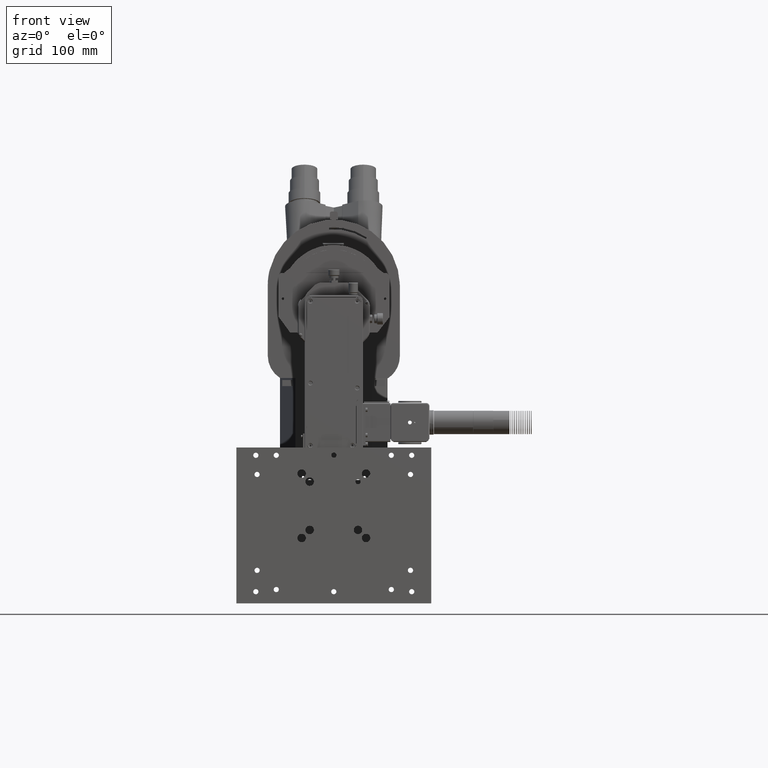
[diagram: clean part render]
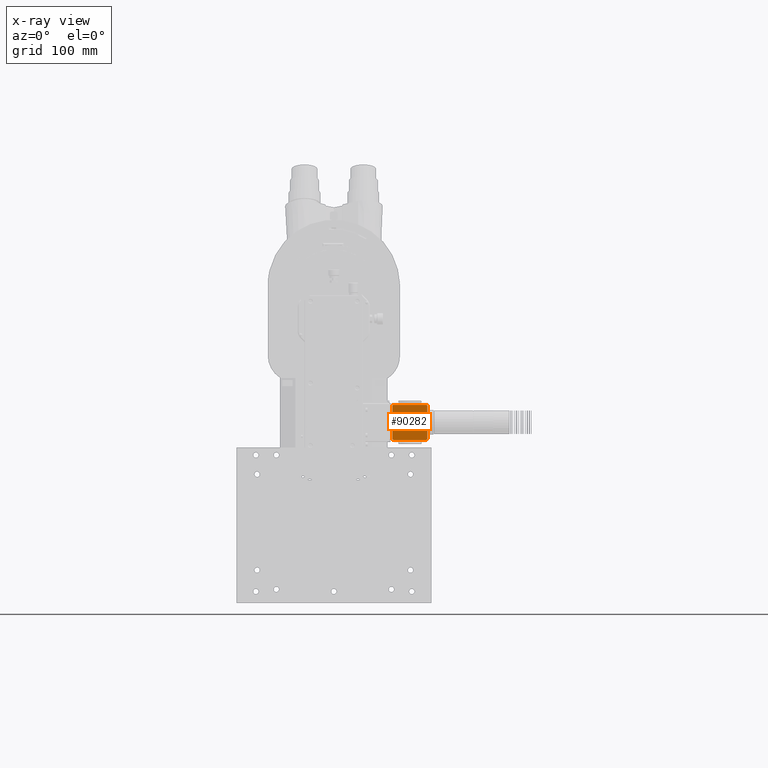
[diagram: x-ray — body ghosted, one internal face saturated and labeled with its STEP entity id]
A machine part, front view, then the same camera in x-ray: the body is ghosted and one INTERNAL B-rep face — a face not visible from any outside direction — is saturated and labeled: STEP entity #90282.
In plain terms, the highlighted planar face has unit normal (0, -1, 0).
Its self-contained STEP definition (entity closure, byte-faithful):
#203 = CIRCLE ( 'NONE', #92633, 1.778000000000001800 ) ;
#922 = CARTESIAN_POINT ( 'NONE',  ( 104.5590147013431200, -322.4024415146998900, 357.6370352799296500 ) ) ;
#3776 = CARTESIAN_POINT ( 'NONE',  ( 104.5590147013431200, -322.4024415146998900, 311.9170352799296200 ) ) ;
#5659 = DIRECTION ( 'NONE',  ( -0.0000000000000000000, 1.000000000000000000, -0.0000000000000000000 ) ) ;
#7919 = ORIENTED_EDGE ( 'NONE', *, *, #35339, .T. ) ;
#9604 = CARTESIAN_POINT ( 'NONE',  ( 148.5010147013431100, -322.4024415146998900, 309.8850352799296400 ) ) ;
#16562 = DIRECTION ( 'NONE',  ( 0.0000000000000000000, -1.000000000000000000, 0.0000000000000000000 ) ) ;
#23456 = LINE ( 'NONE', #84037, #113750 ) ;
#27086 = EDGE_CURVE ( 'NONE', #128031, #136220, #73305, .T. ) ;
#27867 = PLANE ( 'NONE',  #74154 ) ;
#30159 = CARTESIAN_POINT ( 'NONE',  ( 146.7230147013431200, -322.4024415146998900, 311.9170352799296200 ) ) ;
#32650 = VECTOR ( 'NONE', #53203, 1000.000000000000000 ) ;
#34160 = ORIENTED_EDGE ( 'NONE', *, *, #39385, .T. ) ;
#35339 = EDGE_CURVE ( 'NONE', #148197, #71816, #45445, .T. ) ;
#36388 = EDGE_LOOP ( 'NONE', ( #7919, #86473, #137566, #147007, #34160, #57947, #140884, #103364 ) ) ;
#38971 = CARTESIAN_POINT ( 'NONE',  ( 146.7230147013431200, -322.4024415146998900, 313.6950352799296400 ) ) ;
#39385 = EDGE_CURVE ( 'NONE', #49257, #128031, #138864, .T. ) ;
#41677 = EDGE_CURVE ( 'NONE', #126103, #148197, #203, .T. ) ;
#42672 = VECTOR ( 'NONE', #55731, 1000.000000000000000 ) ;
#45445 = LINE ( 'NONE', #101012, #32650 ) ;
#45520 = EDGE_CURVE ( 'NONE', #71816, #67027, #68679, .T. ) ;
#46365 = LINE ( 'NONE', #78915, #42672 ) ;
#47517 = EDGE_CURVE ( 'NONE', #53896, #49257, #98490, .T. ) ;
#49257 = VERTEX_POINT ( 'NONE', #100685 ) ;
#50845 = DIRECTION ( 'NONE',  ( 0.0000000000000000000, 0.0000000000000000000, -1.000000000000000000 ) ) ;
#53003 = DIRECTION ( 'NONE',  ( -0.0000000000000000000, 1.000000000000000000, -0.0000000000000000000 ) ) ;
#53203 = DIRECTION ( 'NONE',  ( 0.0000000000000000000, 0.0000000000000000000, 1.000000000000000000 ) ) ;
#53896 = VERTEX_POINT ( 'NONE', #133818 ) ;
#55012 = EDGE_CURVE ( 'NONE', #136220, #126103, #23456, .T. ) ;
#55731 = DIRECTION ( 'NONE',  ( 1.000000000000000000, 0.0000000000000000000, 0.0000000000000000000 ) ) ;
#57223 = EDGE_CURVE ( 'NONE', #67027, #53896, #46365, .T. ) ;
#57947 = ORIENTED_EDGE ( 'NONE', *, *, #27086, .T. ) ;
#61415 = DIRECTION ( 'NONE',  ( -1.000000000000000000, 0.0000000000000000000, 0.0000000000000000000 ) ) ;
#67027 = VERTEX_POINT ( 'NONE', #922 ) ;
#68356 = CARTESIAN_POINT ( 'NONE',  ( 104.5590147013431200, -322.4024415146998900, 313.6950352799296400 ) ) ;
#68679 = CIRCLE ( 'NONE', #141446, 1.778000000000001800 ) ;
#71816 = VERTEX_POINT ( 'NONE', #146741 ) ;
#73305 = CIRCLE ( 'NONE', #93671, 1.778000000000001800 ) ;
#74154 = AXIS2_PLACEMENT_3D ( 'NONE', #86960, #16562, #98788 ) ;
#74609 = CARTESIAN_POINT ( 'NONE',  ( 148.5010147013431100, -322.4024415146998900, 313.6950352799296400 ) ) ;
#76034 = CARTESIAN_POINT ( 'NONE',  ( 146.7230147013431200, -322.4024415146998900, 355.8590352799296300 ) ) ;
#78915 = CARTESIAN_POINT ( 'NONE',  ( 150.5330147013431200, -322.4024415146998900, 357.6370352799296500 ) ) ;
#80218 = DIRECTION ( 'NONE',  ( 0.0000000000000000000, 0.0000000000000000000, -1.000000000000000000 ) ) ;
#80514 = DIRECTION ( 'NONE',  ( 0.0000000000000000000, 0.0000000000000000000, -1.000000000000000000 ) ) ;
#84037 = CARTESIAN_POINT ( 'NONE',  ( 150.5330147013431200, -322.4024415146998900, 311.9170352799296200 ) ) ;
#86473 = ORIENTED_EDGE ( 'NONE', *, *, #45520, .T. ) ;
#86960 = CARTESIAN_POINT ( 'NONE',  ( 150.5330147013431200, -322.4024415146998900, 309.8850352799296400 ) ) ;
#87794 = DIRECTION ( 'NONE',  ( 0.0000000000000000000, 0.0000000000000000000, -1.000000000000000000 ) ) ;
#90282 = ADVANCED_FACE ( 'NONE', ( #130086 ), #27867, .F. ) ;
#92633 = AXIS2_PLACEMENT_3D ( 'NONE', #68356, #150885, #80218 ) ;
#93671 = AXIS2_PLACEMENT_3D ( 'NONE', #38971, #121440, #50845 ) ;
#98490 = CIRCLE ( 'NONE', #147791, 1.778000000000001800 ) ;
#98788 = DIRECTION ( 'NONE',  ( 0.0000000000000000000, -0.0000000000000000000, -1.000000000000000000 ) ) ;
#100685 = CARTESIAN_POINT ( 'NONE',  ( 148.5010147013431100, -322.4024415146998900, 355.8590352799296300 ) ) ;
#101012 = CARTESIAN_POINT ( 'NONE',  ( 102.7810147013431100, -322.4024415146998900, 309.8850352799296400 ) ) ;
#103364 = ORIENTED_EDGE ( 'NONE', *, *, #41677, .T. ) ;
#104434 = CARTESIAN_POINT ( 'NONE',  ( 102.7810147013431200, -322.4024415146998900, 313.6950352799296400 ) ) ;
#107513 = VECTOR ( 'NONE', #80514, 1000.000000000000000 ) ;
#113750 = VECTOR ( 'NONE', #61415, 1000.000000000000000 ) ;
#121440 = DIRECTION ( 'NONE',  ( -0.0000000000000000000, 1.000000000000000000, -0.0000000000000000000 ) ) ;
#123623 = CARTESIAN_POINT ( 'NONE',  ( 104.5590147013431200, -322.4024415146998900, 355.8590352799296300 ) ) ;
#126103 = VERTEX_POINT ( 'NONE', #3776 ) ;
#128031 = VERTEX_POINT ( 'NONE', #74609 ) ;
#130086 = FACE_OUTER_BOUND ( 'NONE', #36388, .T. ) ;
#133818 = CARTESIAN_POINT ( 'NONE',  ( 146.7230147013431200, -322.4024415146998900, 357.6370352799296500 ) ) ;
#135344 = DIRECTION ( 'NONE',  ( 0.0000000000000000000, 0.0000000000000000000, -1.000000000000000000 ) ) ;
#136220 = VERTEX_POINT ( 'NONE', #30159 ) ;
#137566 = ORIENTED_EDGE ( 'NONE', *, *, #57223, .T. ) ;
#138864 = LINE ( 'NONE', #9604, #107513 ) ;
#140884 = ORIENTED_EDGE ( 'NONE', *, *, #55012, .T. ) ;
#141446 = AXIS2_PLACEMENT_3D ( 'NONE', #123623, #53003, #135344 ) ;
#146741 = CARTESIAN_POINT ( 'NONE',  ( 102.7810147013431100, -322.4024415146998900, 355.8590352799296300 ) ) ;
#147007 = ORIENTED_EDGE ( 'NONE', *, *, #47517, .T. ) ;
#147791 = AXIS2_PLACEMENT_3D ( 'NONE', #76034, #5659, #87794 ) ;
#148197 = VERTEX_POINT ( 'NONE', #104434 ) ;
#150885 = DIRECTION ( 'NONE',  ( -0.0000000000000000000, 1.000000000000000000, -0.0000000000000000000 ) ) ;